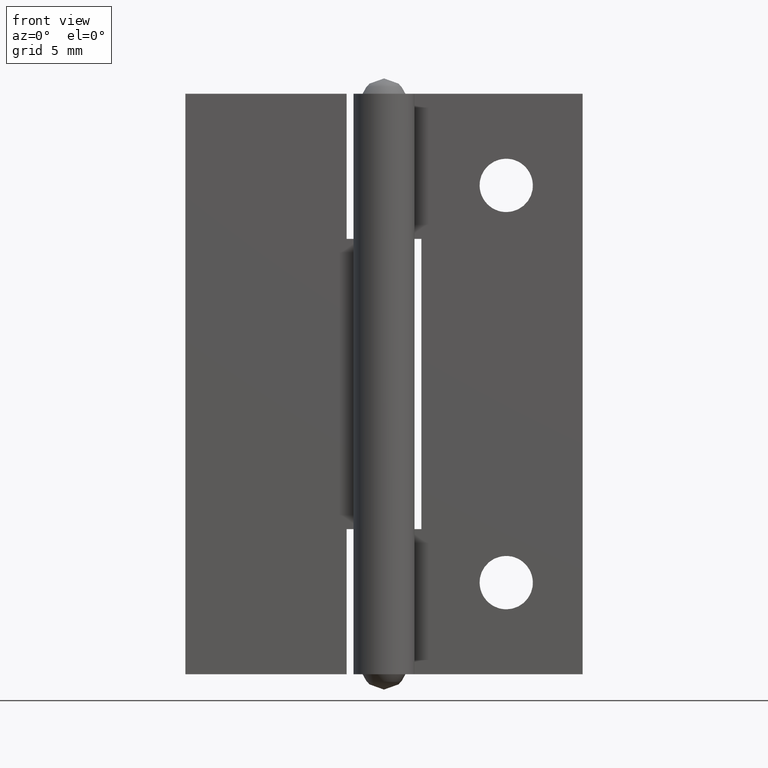
[diagram: clean part render]
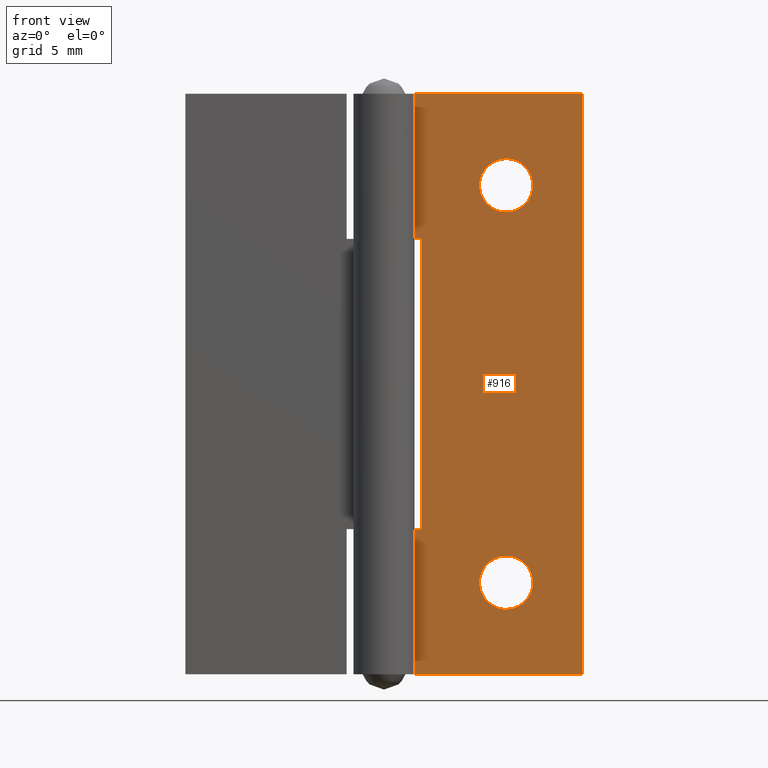
[diagram: same view with one face highlighted and labeled with its STEP entity id]
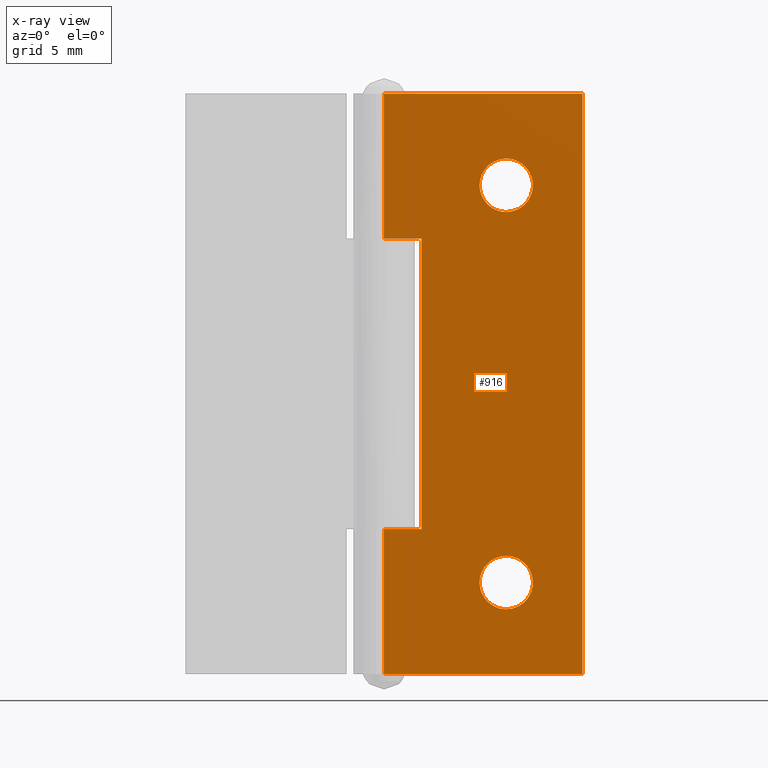
[diagram: x-ray of the same camera — body ghosted, the highlighted face saturated]
A machine part, front view. The second image highlights one B-rep face of the part: STEP entity #916.
The next image is the same camera in x-ray: the body ghosted, the highlighted face saturated — about 0% of this face is hidden behind the body in this view.
In plain terms, the highlighted face is a freeform B-spline surface patch.
Its self-contained STEP definition (entity closure, byte-faithful):
#483=CARTESIAN_POINT('',(8.0,1.199999999999980,30.250000000000000));
#484=VERTEX_POINT('',#483);
#485=CARTESIAN_POINT('',(9.136532651519580,1.199999999999944,30.669288336255249));
#486=VERTEX_POINT('',#485);
#487=CARTESIAN_POINT('',(8.0,1.199999999999980,30.250000000000000));
#488=CARTESIAN_POINT('',(8.645608014396668,1.199999999999962,30.250000000000391));
#489=CARTESIAN_POINT('',(9.136532651519580,1.199999999999944,30.669288336255246));
#497=(BOUNDED_CURVE()B_SPLINE_CURVE(2,(#487,#488,#489),.UNSPECIFIED.,.F.,.U.)B_SPLINE_CURVE_WITH_KNOTS((3,3),(0.0,0.113142998605182),.UNSPECIFIED.)CURVE()GEOMETRIC_REPRESENTATION_ITEM()RATIONAL_B_SPLINE_CURVE((1.0,0.867444731809289,0.854871067810667))REPRESENTATION_ITEM(''));
#498=EDGE_CURVE('',#484,#486,#497,.T.);
#539=CARTESIAN_POINT('',(6.863467348480421,1.199999999999944,33.330711663744751));
#540=VERTEX_POINT('',#539);
#546=CARTESIAN_POINT('',(6.863467348480421,1.199999999999944,33.330711663744751));
#547=CARTESIAN_POINT('',(6.762201287348658,1.199999999999945,33.244254798459643));
#548=CARTESIAN_POINT('',(6.594784963161269,1.199999999999945,33.064414939339080));
#549=CARTESIAN_POINT('',(6.388250203546527,1.199999999999948,32.720374082869107));
#550=CARTESIAN_POINT('',(6.281617318938164,1.199999999999955,32.390140694719911));
#551=CARTESIAN_POINT('',(6.244190977021409,1.199999999999951,32.058641482705191));
#552=CARTESIAN_POINT('',(6.257349413279215,1.199999999999969,31.724805460168479));
#553=CARTESIAN_POINT('',(6.343136352190130,1.199999999999947,31.400134247354138));
#554=CARTESIAN_POINT('',(6.490702374420815,1.199999999999966,31.100912144037469));
#555=CARTESIAN_POINT('',(6.637477376414957,1.199999999999994,30.890997688441420));
#556=CARTESIAN_POINT('',(6.844848541483939,1.199999999999937,30.673856023118990));
#557=CARTESIAN_POINT('',(7.131772337434098,1.200000000000004,30.461390637608471));
#558=CARTESIAN_POINT('',(7.533998457331089,1.199999999999964,30.291637658384040));
#559=CARTESIAN_POINT('',(7.844656604942534,1.199999999999964,30.249949596659771));
#560=CARTESIAN_POINT('',(8.0,1.199999999999980,30.250000000000000));
#561=B_SPLINE_CURVE_WITH_KNOTS('',3,(#546,#547,#548,#549,#550,#551,#552,#553,#554,#555,#556,#557,#558,#559,#560),.UNSPECIFIED.,.F.,.U.,(4,1,1,1,1,1,1,1,1,1,1,1,4),(0.000000097653778,0.399461320233686,0.732347640084507,1.198382845620493,1.431400059603299,1.730941910634305,2.196995219908256,2.430010835353175,2.729604549712226,2.962625219142008,3.328795002813289,3.794826751472892,4.260851146010528),.UNSPECIFIED.);
#562=EDGE_CURVE('',#540,#484,#561,.T.);
#585=CARTESIAN_POINT('',(8.0,1.199999999999980,33.750000000000000));
#586=VERTEX_POINT('',#585);
#587=CARTESIAN_POINT('',(9.136532651519580,1.199999999999944,30.669288336255249));
#588=CARTESIAN_POINT('',(9.288517878917256,1.199999999999946,30.798905604661009));
#589=CARTESIAN_POINT('',(9.504026547967898,1.199999999999946,31.058968270319522));
#590=CARTESIAN_POINT('',(9.694326385441192,1.199999999999951,31.499909109649231));
#591=CARTESIAN_POINT('',(9.760384657942227,1.199999999999956,31.885613121132241));
#592=CARTESIAN_POINT('',(9.744492022175567,1.199999999999956,32.208444107929530));
#593=CARTESIAN_POINT('',(9.686739510826779,1.199999999999975,32.491569877146233));
#594=CARTESIAN_POINT('',(9.594149871332348,1.199999999999935,32.742545101513720));
#595=CARTESIAN_POINT('',(9.426943072472849,1.199999999999982,33.031508751267452));
#596=CARTESIAN_POINT('',(9.221962822494273,1.199999999999969,33.267658271862743));
#597=CARTESIAN_POINT('',(8.950650808024889,1.199999999999980,33.480733582320191));
#598=CARTESIAN_POINT('',(8.684168581418767,1.199999999999968,33.621175877144232));
#599=CARTESIAN_POINT('',(8.355050601882052,1.199999999999993,33.724543155967751));
#600=CARTESIAN_POINT('',(8.133151563020620,1.199999999999971,33.750028687731891));
#601=CARTESIAN_POINT('',(8.0,1.199999999999980,33.750000000000000));
#602=B_SPLINE_CURVE_WITH_KNOTS('',3,(#587,#588,#589,#590,#591,#592,#593,#594,#595,#596,#597,#598,#599,#600,#601),.UNSPECIFIED.,.F.,.U.,(4,1,1,1,1,1,1,1,1,1,1,1,4),(0.000000097623515,0.599193600925142,0.998656336800985,1.431400059584209,1.764231252647025,1.963966497419007,2.296863989279788,2.563161385079017,2.962625219134810,3.228928425733578,3.595103627443369,3.861397553882378,4.260851146010713),.UNSPECIFIED.);
#603=EDGE_CURVE('',#486,#586,#602,.T.);
#605=CARTESIAN_POINT('',(8.0,1.199999999999980,33.750000000000000));
#606=CARTESIAN_POINT('',(7.354391985603334,1.199999999999962,33.749999999999623));
#607=CARTESIAN_POINT('',(6.863467348480421,1.199999999999944,33.330711663744758));
#615=(BOUNDED_CURVE()B_SPLINE_CURVE(2,(#605,#606,#607),.UNSPECIFIED.,.F.,.U.)B_SPLINE_CURVE_WITH_KNOTS((3,3),(0.500000000000000,0.613142998605182),.UNSPECIFIED.)CURVE()GEOMETRIC_REPRESENTATION_ITEM()RATIONAL_B_SPLINE_CURVE((1.0,0.867444731809289,0.854871067810667))REPRESENTATION_ITEM(''));
#616=EDGE_CURVE('',#586,#540,#615,.T.);
#671=CARTESIAN_POINT('',(8.0,1.199999999999980,4.250000000000000));
#672=VERTEX_POINT('',#671);
#673=CARTESIAN_POINT('',(9.136532651519580,1.199999999999944,4.669288336255249));
#674=VERTEX_POINT('',#673);
#675=CARTESIAN_POINT('',(8.0,1.199999999999980,4.250000000000000));
#676=CARTESIAN_POINT('',(8.645608014396668,1.199999999999962,4.250000000000386));
#677=CARTESIAN_POINT('',(9.136532651519580,1.199999999999944,4.669288336255250));
#685=(BOUNDED_CURVE()B_SPLINE_CURVE(2,(#675,#676,#677),.UNSPECIFIED.,.F.,.U.)B_SPLINE_CURVE_WITH_KNOTS((3,3),(0.0,0.113142998605182),.UNSPECIFIED.)CURVE()GEOMETRIC_REPRESENTATION_ITEM()RATIONAL_B_SPLINE_CURVE((1.0,0.867444731809289,0.854871067810667))REPRESENTATION_ITEM(''));
#686=EDGE_CURVE('',#672,#674,#685,.T.);
#727=CARTESIAN_POINT('',(6.863467348480421,1.199999999999944,7.330711663744751));
#728=VERTEX_POINT('',#727);
#734=CARTESIAN_POINT('',(6.863467348480421,1.199999999999944,7.330711663744751));
#735=CARTESIAN_POINT('',(6.762196962561858,1.199999999999945,7.244256769359605));
#736=CARTESIAN_POINT('',(6.610012042111099,1.199999999999944,7.080759491394764));
#737=CARTESIAN_POINT('',(6.420964015140223,1.199999999999949,6.778978343950741));
#738=CARTESIAN_POINT('',(6.295956045694258,1.199999999999950,6.456115065878524));
#739=CARTESIAN_POINT('',(6.242404939822133,1.199999999999952,6.103153104630200));
#740=CARTESIAN_POINT('',(6.255187749695219,1.199999999999958,5.780458808487335));
#741=CARTESIAN_POINT('',(6.315763086681818,1.199999999999961,5.497323295499058));
#742=CARTESIAN_POINT('',(6.417002172147307,1.199999999999962,5.238191696368774));
#743=CARTESIAN_POINT('',(6.550782260103689,1.199999999999969,5.007038529483193));
#744=CARTESIAN_POINT('',(6.759826835611584,1.199999999999968,4.746741116594973));
#745=CARTESIAN_POINT('',(7.063310744948985,1.199999999999971,4.498924999080288));
#746=CARTESIAN_POINT('',(7.500730246441561,1.199999999999985,4.299391383371766));
#747=CARTESIAN_POINT('',(7.822464157766213,1.199999999999976,4.249918119588504));
#748=CARTESIAN_POINT('',(8.0,1.199999999999980,4.250000000000000));
#749=B_SPLINE_CURVE_WITH_KNOTS('',3,(#734,#735,#736,#737,#738,#739,#740,#741,#742,#743,#744,#745,#746,#747,#748),.UNSPECIFIED.,.F.,.U.,(4,1,1,1,1,1,1,1,1,1,1,1,4),(0.000000097645799,0.399461320226263,0.665770660492692,1.065233263882337,1.431400059596605,1.730941910628224,2.030545190107994,2.296863989287261,2.563161385085175,2.829470906999219,3.295506133502064,3.728253908416882,4.260851146010603),.UNSPECIFIED.);
#750=EDGE_CURVE('',#728,#672,#749,.T.);
#773=CARTESIAN_POINT('',(8.0,1.199999999999980,7.750000000000000));
#774=VERTEX_POINT('',#773);
#775=CARTESIAN_POINT('',(9.136532651519580,1.199999999999944,4.669288336255249));
#776=CARTESIAN_POINT('',(9.271605164302981,1.199999999999945,4.784525638439049));
#777=CARTESIAN_POINT('',(9.447433427765454,1.199999999999943,4.988606443568062));
#778=CARTESIAN_POINT('',(9.633679088545938,1.199999999999955,5.343303583512491));
#779=CARTESIAN_POINT('',(9.733777078180676,1.199999999999940,5.674715899126023));
#780=CARTESIAN_POINT('',(9.759519539484405,1.199999999999970,6.019599428387868));
#781=CARTESIAN_POINT('',(9.722981328589768,1.199999999999952,6.362625414418513));
#782=CARTESIAN_POINT('',(9.631659645277299,1.199999999999962,6.661704648753843));
#783=CARTESIAN_POINT('',(9.475539257749389,1.199999999999972,6.956806553606219));
#784=CARTESIAN_POINT('',(9.298369396855007,1.199999999999968,7.186138935640034));
#785=CARTESIAN_POINT('',(9.060453554817359,1.199999999999974,7.404185345545836));
#786=CARTESIAN_POINT('',(8.805418304997200,1.199999999999970,7.564479971663633));
#787=CARTESIAN_POINT('',(8.443778064213221,1.199999999999998,7.709116514973430));
#788=CARTESIAN_POINT('',(8.177542752799800,1.199999999999951,7.750083031787414));
#789=CARTESIAN_POINT('',(8.0,1.199999999999980,7.750000000000000));
#790=B_SPLINE_CURVE_WITH_KNOTS('',3,(#775,#776,#777,#778,#779,#780,#781,#782,#783,#784,#785,#786,#787,#788,#789),.UNSPECIFIED.,.F.,.U.,(4,1,1,1,1,1,1,1,1,1,1,1,4),(0.000000097646517,0.532616372759213,0.798924650708392,1.198382845614065,1.564498813170190,1.830808702786238,2.230285381287586,2.496585582105235,2.829470906999545,3.095777162341318,3.461950085235202,3.728253908417000,4.260851146010596),.UNSPECIFIED.);
#791=EDGE_CURVE('',#674,#774,#790,.T.);
#793=CARTESIAN_POINT('',(8.0,1.199999999999980,7.750000000000000));
#794=CARTESIAN_POINT('',(7.354391985603334,1.199999999999962,7.749999999999615));
#795=CARTESIAN_POINT('',(6.863467348480421,1.199999999999944,7.330711663744751));
#803=(BOUNDED_CURVE()B_SPLINE_CURVE(2,(#793,#794,#795),.UNSPECIFIED.,.F.,.U.)B_SPLINE_CURVE_WITH_KNOTS((3,3),(0.500000000000000,0.613142998605182),.UNSPECIFIED.)CURVE()GEOMETRIC_REPRESENTATION_ITEM()RATIONAL_B_SPLINE_CURVE((1.0,0.867444731809289,0.854871067810667))REPRESENTATION_ITEM(''));
#804=EDGE_CURVE('',#774,#728,#803,.T.);
#841=CARTESIAN_POINT('',(-0.649350011453639,1.200000000000000,-1.898099926348628));
#842=CARTESIAN_POINT('',(-0.649350011453639,1.200000000000000,39.898100945588048));
#843=CARTESIAN_POINT('',(13.649350325234240,1.200000000000000,-1.898099926348628));
#844=CARTESIAN_POINT('',(13.649350325234240,1.200000000000000,39.898100945588048));
#845=B_SPLINE_SURFACE_WITH_KNOTS('',1,1,((#841,#843),(#842,#844)),.UNSPECIFIED.,.F.,.F.,.U.,(2,2),(2,2),(0.0,41.796200871936684),(0.0,14.298700336687880),.UNSPECIFIED.);
#846=CARTESIAN_POINT('',(2.449999999999905,1.199999999999980,28.500000000000000));
#847=VERTEX_POINT('',#846);
#848=CARTESIAN_POINT('',(-0.000000034906577,1.200000000000000,28.500000000000000));
#849=VERTEX_POINT('',#848);
#850=CARTESIAN_POINT('',(2.449999999999905,1.199999999999980,28.500000000000000));
#851=CARTESIAN_POINT('',(-0.000000034906577,1.200000000000000,28.500000000000000));
#852=QUASI_UNIFORM_CURVE('',1,(#850,#851),.UNSPECIFIED.,.F.,.U.);
#853=EDGE_CURVE('',#847,#849,#852,.T.);
#854=ORIENTED_EDGE('',*,*,#853,.F.);
#855=CARTESIAN_POINT('',(2.449999999999905,1.200000000000000,9.500000000000000));
#856=VERTEX_POINT('',#855);
#857=CARTESIAN_POINT('',(2.449999999999905,1.200000000000000,9.500000000000000));
#858=CARTESIAN_POINT('',(2.449999999999905,1.199999999999980,28.500000000000000));
#859=QUASI_UNIFORM_CURVE('',1,(#857,#858),.UNSPECIFIED.,.F.,.U.);
#860=EDGE_CURVE('',#856,#847,#859,.T.);
#861=ORIENTED_EDGE('',*,*,#860,.F.);
#862=CARTESIAN_POINT('',(-0.000000034906577,1.200000000000000,9.500000000000000));
#863=VERTEX_POINT('',#862);
#864=CARTESIAN_POINT('',(-0.000000034906577,1.200000000000000,9.500000000000000));
#865=CARTESIAN_POINT('',(2.449999999999905,1.200000000000000,9.500000000000000));
#866=QUASI_UNIFORM_CURVE('',1,(#864,#865),.UNSPECIFIED.,.F.,.U.);
#867=EDGE_CURVE('',#863,#856,#866,.T.);
#868=ORIENTED_EDGE('',*,*,#867,.F.);
#869=CARTESIAN_POINT('',(-0.000000034906577,1.200000000000000,0.0));
#870=VERTEX_POINT('',#869);
#871=CARTESIAN_POINT('',(-0.000000034906577,1.200000000000000,9.500000000000000));
#872=CARTESIAN_POINT('',(-0.000000034906577,1.200000000000000,0.0));
#873=QUASI_UNIFORM_CURVE('',1,(#871,#872),.UNSPECIFIED.,.F.,.U.);
#874=EDGE_CURVE('',#863,#870,#873,.T.);
#875=ORIENTED_EDGE('',*,*,#874,.T.);
#876=CARTESIAN_POINT('',(13.0,1.200000000000000,0.0));
#877=VERTEX_POINT('',#876);
#878=CARTESIAN_POINT('',(-0.000000034906577,1.200000000000000,0.0));
#879=CARTESIAN_POINT('',(13.0,1.200000000000000,0.0));
#880=QUASI_UNIFORM_CURVE('',1,(#878,#879),.UNSPECIFIED.,.F.,.U.);
#881=EDGE_CURVE('',#870,#877,#880,.T.);
#882=ORIENTED_EDGE('',*,*,#881,.T.);
#883=CARTESIAN_POINT('',(13.0,1.200000000000000,38.0));
#884=VERTEX_POINT('',#883);
#885=CARTESIAN_POINT('',(13.0,1.200000000000000,38.0));
#886=CARTESIAN_POINT('',(13.0,1.200000000000000,0.0));
#887=QUASI_UNIFORM_CURVE('',1,(#885,#886),.UNSPECIFIED.,.F.,.U.);
#888=EDGE_CURVE('',#884,#877,#887,.T.);
#889=ORIENTED_EDGE('',*,*,#888,.F.);
#890=CARTESIAN_POINT('',(-0.000000034906577,1.200000000000000,38.0));
#891=VERTEX_POINT('',#890);
#892=CARTESIAN_POINT('',(-0.000000034906577,1.200000000000000,38.0));
#893=CARTESIAN_POINT('',(13.0,1.200000000000000,38.0));
#894=QUASI_UNIFORM_CURVE('',1,(#892,#893),.UNSPECIFIED.,.F.,.U.);
#895=EDGE_CURVE('',#891,#884,#894,.T.);
#896=ORIENTED_EDGE('',*,*,#895,.F.);
#897=CARTESIAN_POINT('',(-0.000000034906577,1.200000000000000,38.0));
#898=CARTESIAN_POINT('',(-0.000000034906577,1.200000000000000,28.500000000000000));
#899=QUASI_UNIFORM_CURVE('',1,(#897,#898),.UNSPECIFIED.,.F.,.U.);
#900=EDGE_CURVE('',#891,#849,#899,.T.);
#901=ORIENTED_EDGE('',*,*,#900,.T.);
#902=EDGE_LOOP('',(#854,#861,#868,#875,#882,#889,#896,#901));
#903=FACE_OUTER_BOUND('',#902,.T.);
#904=ORIENTED_EDGE('',*,*,#804,.F.);
#905=ORIENTED_EDGE('',*,*,#791,.F.);
#906=ORIENTED_EDGE('',*,*,#686,.F.);
#907=ORIENTED_EDGE('',*,*,#750,.F.);
#908=EDGE_LOOP('',(#904,#905,#906,#907));
#909=FACE_BOUND('',#908,.T.);
#910=ORIENTED_EDGE('',*,*,#616,.F.);
#911=ORIENTED_EDGE('',*,*,#603,.F.);
#912=ORIENTED_EDGE('',*,*,#498,.F.);
#913=ORIENTED_EDGE('',*,*,#562,.F.);
#914=EDGE_LOOP('',(#910,#911,#912,#913));
#915=FACE_BOUND('',#914,.T.);
#916=ADVANCED_FACE('',(#903,#909,#915),#845,.F.);